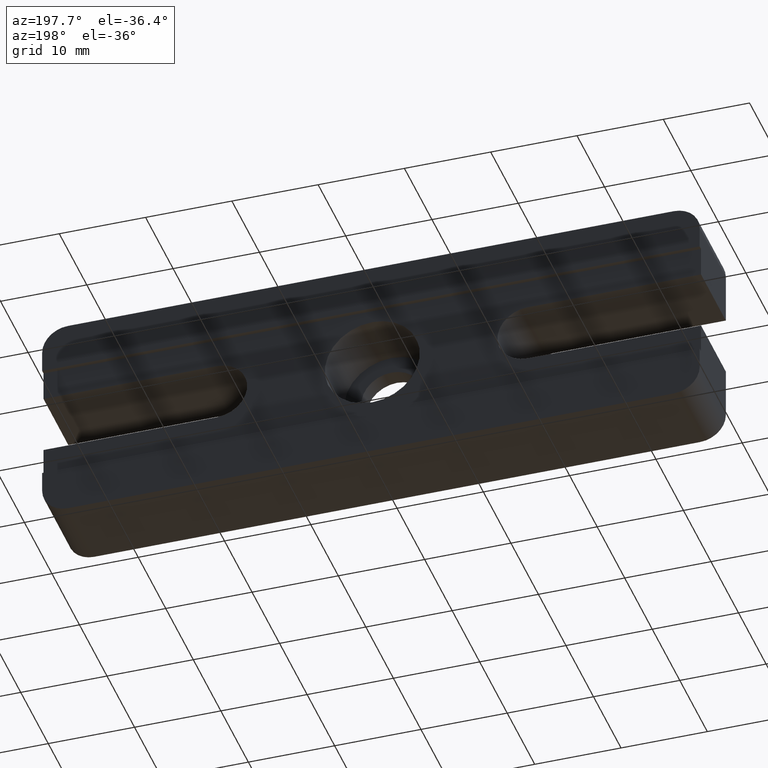
[diagram: clean part render]
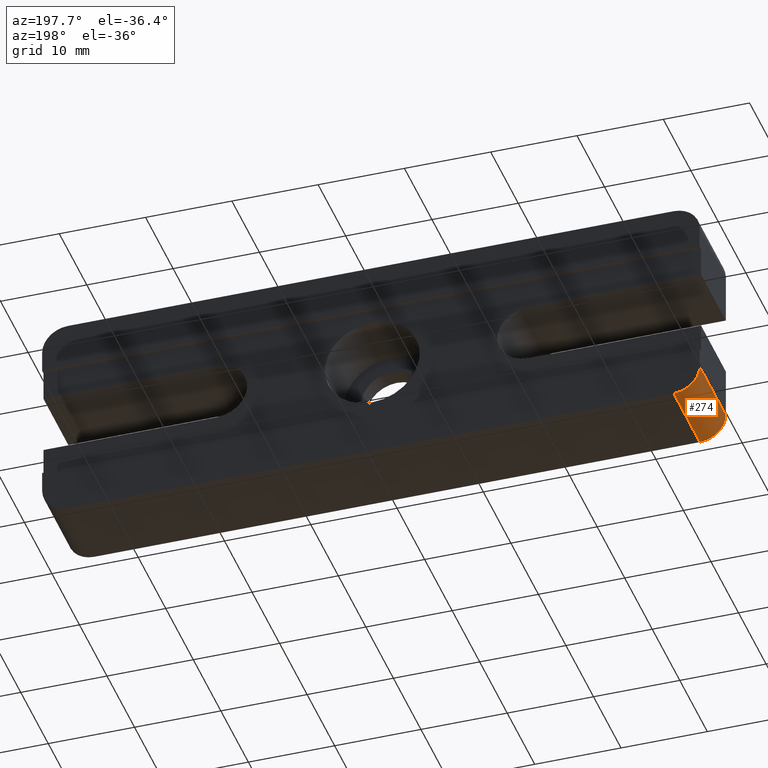
[diagram: same view with one face highlighted and labeled with its STEP entity id]
A machine part, auxiliary view. The second image highlights one B-rep face of the part: STEP entity #274.
In plain terms, the highlighted cylindrical surface (edge-blend (fillet) strip) has radius 3 mm, axis along (-0, -1, -0).
Its self-contained STEP definition (entity closure, byte-faithful):
#17 = AXIS2_PLACEMENT_3D ( 'NONE', #326, #816, #604 ) ;
#18 = FACE_OUTER_BOUND ( 'NONE', #399, .T. ) ;
#30 = DIRECTION ( 'NONE',  ( -0.0000000000000000000, -1.000000000000000000, -0.0000000000000000000 ) ) ;
#69 = DIRECTION ( 'NONE',  ( -0.0000000000000000000, -1.000000000000000000, -0.0000000000000000000 ) ) ;
#76 = ORIENTED_EDGE ( 'NONE', *, *, #737, .T. ) ;
#79 = AXIS2_PLACEMENT_3D ( 'NONE', #617, #667, #192 ) ;
#112 = DIRECTION ( 'NONE',  ( 0.0000000000000000000, 1.000000000000000000, -0.0000000000000000000 ) ) ;
#132 = CIRCLE ( 'NONE', #79, 3.000000000000003600 ) ;
#165 = LINE ( 'NONE', #440, #618 ) ;
#166 = CARTESIAN_POINT ( 'NONE',  ( -35.10000000000005800, 9.500000000000000000, -12.49999999999999100 ) ) ;
#180 = CARTESIAN_POINT ( 'NONE',  ( -35.10000000000005800, 9.500000000000000000, -12.49999999999999100 ) ) ;
#192 = DIRECTION ( 'NONE',  ( 0.0000000000000000000, 0.0000000000000000000, 1.000000000000000000 ) ) ;
#260 = VERTEX_POINT ( 'NONE', #309 ) ;
#274 = ADVANCED_FACE ( 'NONE', ( #18 ), #684, .T. ) ;
#309 = CARTESIAN_POINT ( 'NONE',  ( -35.10000000000005800, 0.0000000000000000000, -12.49999999999999100 ) ) ;
#318 = EDGE_CURVE ( 'NONE', #608, #260, #611, .T. ) ;
#326 = CARTESIAN_POINT ( 'NONE',  ( -35.10000000000005800, 9.500000000000000000, -9.499999999999992900 ) ) ;
#348 = VERTEX_POINT ( 'NONE', #733 ) ;
#356 = EDGE_CURVE ( 'NONE', #608, #348, #455, .T. ) ;
#399 = EDGE_LOOP ( 'NONE', ( #76, #743, #558, #926 ) ) ;
#440 = CARTESIAN_POINT ( 'NONE',  ( -38.10000000000008000, 9.500000000000000000, -9.499999999999992900 ) ) ;
#455 = CIRCLE ( 'NONE', #850, 3.000000000000003600 ) ;
#473 = DIRECTION ( 'NONE',  ( 0.0000000000000000000, 0.0000000000000000000, 1.000000000000000000 ) ) ;
#523 = EDGE_CURVE ( 'NONE', #348, #703, #165, .T. ) ;
#543 = CARTESIAN_POINT ( 'NONE',  ( -35.10000000000005800, 9.500000000000000000, -9.499999999999992900 ) ) ;
#558 = ORIENTED_EDGE ( 'NONE', *, *, #356, .F. ) ;
#604 = DIRECTION ( 'NONE',  ( 0.0000000000000000000, 0.0000000000000000000, -1.000000000000000000 ) ) ;
#608 = VERTEX_POINT ( 'NONE', #166 ) ;
#611 = LINE ( 'NONE', #180, #770 ) ;
#617 = CARTESIAN_POINT ( 'NONE',  ( -35.10000000000005800, 0.0000000000000000000, -9.499999999999992900 ) ) ;
#618 = VECTOR ( 'NONE', #69, 1000.000000000000000 ) ;
#667 = DIRECTION ( 'NONE',  ( 0.0000000000000000000, 1.000000000000000000, -0.0000000000000000000 ) ) ;
#684 = CYLINDRICAL_SURFACE ( 'NONE', #17, 3.000000000000004400 ) ;
#703 = VERTEX_POINT ( 'NONE', #821 ) ;
#733 = CARTESIAN_POINT ( 'NONE',  ( -38.10000000000008000, 9.500000000000000000, -9.499999999999992900 ) ) ;
#737 = EDGE_CURVE ( 'NONE', #260, #703, #132, .T. ) ;
#743 = ORIENTED_EDGE ( 'NONE', *, *, #523, .F. ) ;
#770 = VECTOR ( 'NONE', #30, 1000.000000000000000 ) ;
#816 = DIRECTION ( 'NONE',  ( -0.0000000000000000000, -1.000000000000000000, -0.0000000000000000000 ) ) ;
#821 = CARTESIAN_POINT ( 'NONE',  ( -38.10000000000008000, 0.0000000000000000000, -9.499999999999992900 ) ) ;
#850 = AXIS2_PLACEMENT_3D ( 'NONE', #543, #112, #473 ) ;
#926 = ORIENTED_EDGE ( 'NONE', *, *, #318, .T. ) ;